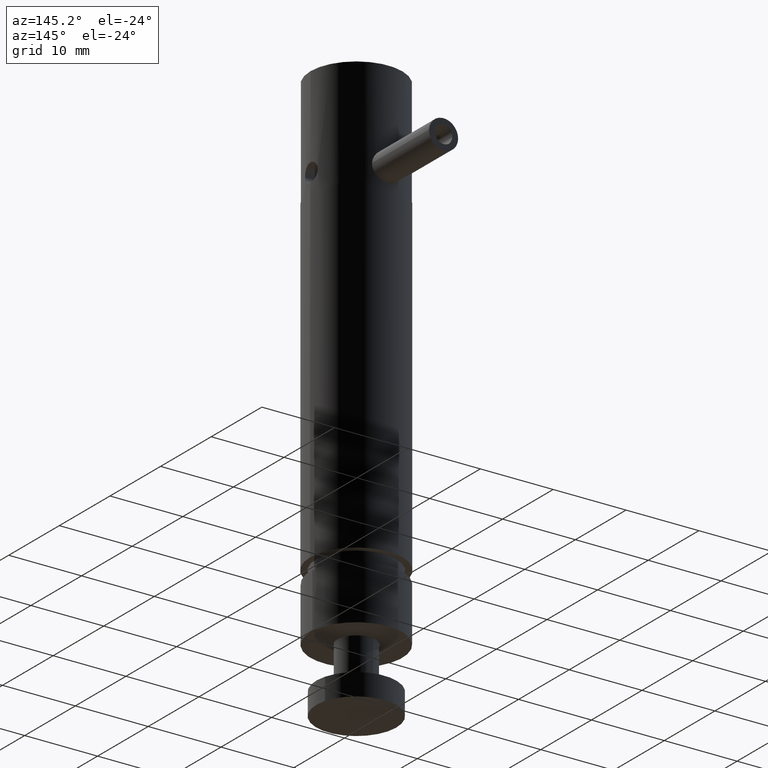
[diagram: clean part render]
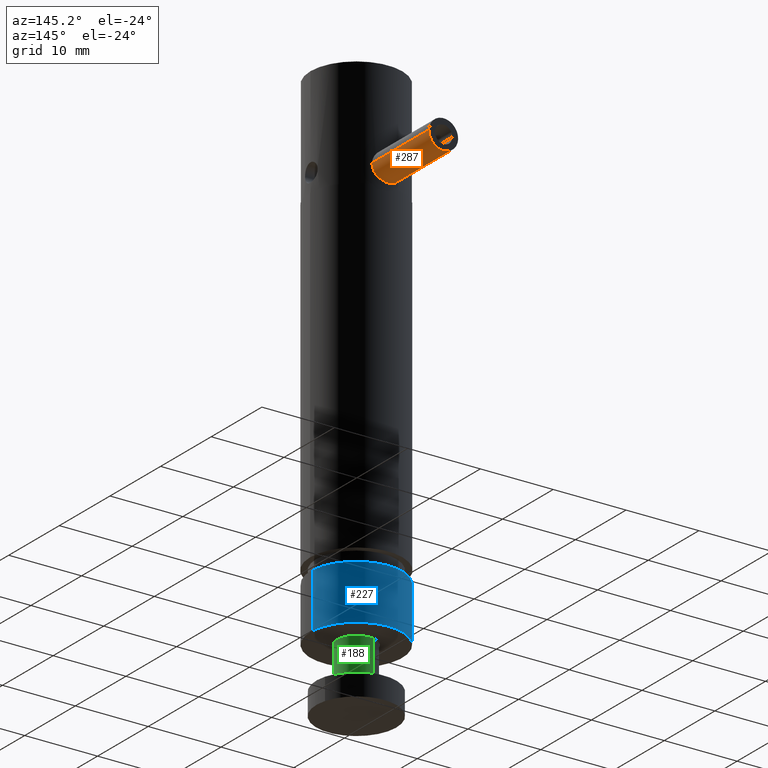
[diagram: same view with three faces highlighted in distinct colors, each labeled with its STEP entity id]
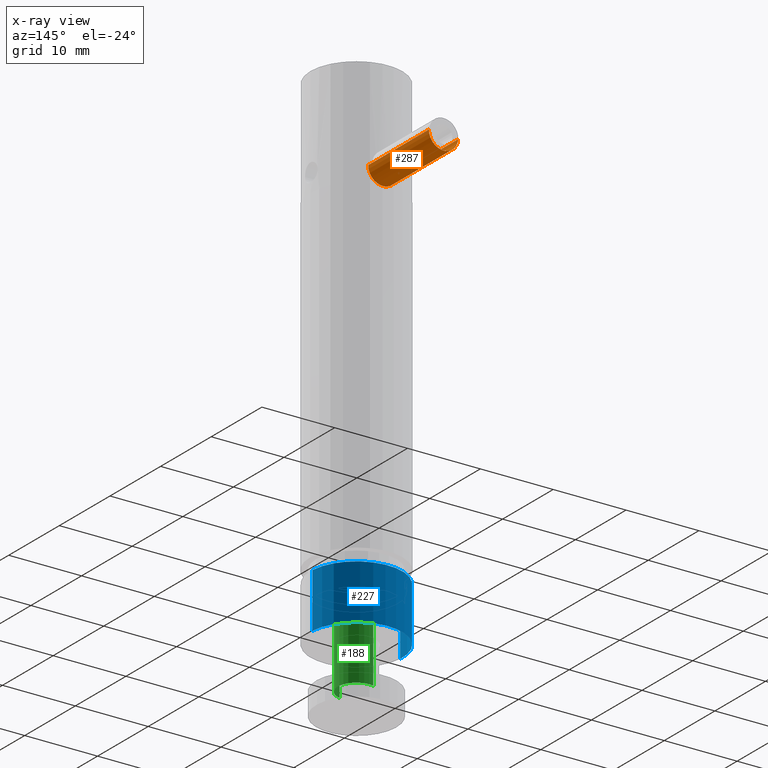
[diagram: x-ray of the same camera — body ghosted, the three highlighted faces saturated]
A machine part, auxiliary view with three faces highlighted in distinct colors.
The next image is the same camera in x-ray (body ghosted, the three faces saturated) — at least one of them is partly hidden behind the body in this view.
Their STEP definitions:

[orange] entity #287 — the highlighted cylindrical surface (edge-blend (fillet) strip) has radius 2 mm, axis along (0, -1, 0).
#281 = VERTEX_POINT ( 'NONE', #1646 ) ;
#284 = VERTEX_POINT ( 'NONE', #1640 ) ;
#286 = EDGE_CURVE ( 'NONE', #305, #284, #1638, .T. ) ;
#287 = ADVANCED_FACE ( 'NONE', ( #1634 ), #1670, .T. ) ;
#288 = EDGE_LOOP ( 'NONE', ( #289, #290, #292, #293 ) ) ;
#289 = ORIENTED_EDGE ( 'NONE', *, *, #308, .F. ) ;
#290 = ORIENTED_EDGE ( 'NONE', *, *, #291, .T. ) ;
#291 = EDGE_CURVE ( 'NONE', #306, #305, #1666, .T. ) ;
#292 = ORIENTED_EDGE ( 'NONE', *, *, #286, .T. ) ;
#293 = ORIENTED_EDGE ( 'NONE', *, *, #347, .F. ) ;
#305 = VERTEX_POINT ( 'NONE', #1730 ) ;
#306 = VERTEX_POINT ( 'NONE', #1729 ) ;
#308 = EDGE_CURVE ( 'NONE', #306, #281, #1728, .T. ) ;
#347 = EDGE_CURVE ( 'NONE', #281, #284, #1841, .T. ) ;
#1634 = FACE_OUTER_BOUND ( 'NONE', #288, .T. ) ;
#1635 = DIRECTION ( 'NONE',  ( 5.298209912513082200E-032, -1.000000000000000000, 1.224606353822371300E-016 ) ) ;
#1636 = VECTOR ( 'NONE', #1635, 39.37007874015748100 ) ;
#1637 = CARTESIAN_POINT ( 'NONE',  ( 0.1088473596767234200, 0.4205617955520675700, -0.7586861980781748300 ) ) ;
#1638 = LINE ( 'NONE', #1637, #1636 ) ;
#1640 = CARTESIAN_POINT ( 'NONE',  ( 0.1088473596767234600, -0.05187914932982037900, -0.7586861980781748300 ) ) ;
#1646 = CARTESIAN_POINT ( 'NONE',  ( -0.04847744956013849000, -0.05187914932982037900, -0.7656829114983621000 ) ) ;
#1663 = DIRECTION ( 'NONE',  ( 0.9990125386540726900, 0.0000000000000000000, 0.04442913021818899200 ) ) ;
#1664 = DIRECTION ( 'NONE',  ( 5.298209912513082200E-032, -1.000000000000000000, 1.224606353822371300E-016 ) ) ;
#1665 = AXIS2_PLACEMENT_3D ( 'NONE', #1671, #1664, #1663 ) ;
#1666 = CIRCLE ( 'NONE', #1665, 0.07874015748031498700 ) ;
#1667 = DIRECTION ( 'NONE',  ( 0.9990125386540726900, 0.0000000000000000000, 0.04442913021818899200 ) ) ;
#1668 = DIRECTION ( 'NONE',  ( 5.298209912513082200E-032, -1.000000000000000000, 1.224606353822371300E-016 ) ) ;
#1669 = AXIS2_PLACEMENT_3D ( 'NONE', #1672, #1668, #1667 ) ;
#1670 = CYLINDRICAL_SURFACE ( 'NONE', #1669, 0.07874015748031498700 ) ;
#1671 = CARTESIAN_POINT ( 'NONE',  ( 0.03018495505829247400, 0.4205617955520675700, -0.7621845547882684100 ) ) ;
#1672 = CARTESIAN_POINT ( 'NONE',  ( 0.03018495505829247400, 0.4205617955520675700, -0.7621845547882684100 ) ) ;
#1725 = DIRECTION ( 'NONE',  ( 5.298209912513082200E-032, -1.000000000000000000, 1.224606353822371300E-016 ) ) ;
#1726 = VECTOR ( 'NONE', #1725, 39.37007874015748100 ) ;
#1727 = CARTESIAN_POINT ( 'NONE',  ( -0.04847744956013847600, 0.4205617955520675700, -0.7656829114983621000 ) ) ;
#1728 = LINE ( 'NONE', #1727, #1726 ) ;
#1729 = CARTESIAN_POINT ( 'NONE',  ( -0.04847744956013852500, 0.4205617955520675700, -0.7656829114983621000 ) ) ;
#1730 = CARTESIAN_POINT ( 'NONE',  ( 0.1088473596767234200, 0.4205617955520675700, -0.7586861980781748300 ) ) ;
#1837 = DIRECTION ( 'NONE',  ( 0.9990125386540726900, 0.0000000000000000000, 0.04442913021818899200 ) ) ;
#1838 = DIRECTION ( 'NONE',  ( 5.298209912513082200E-032, -1.000000000000000000, 1.224606353822371300E-016 ) ) ;
#1839 = CARTESIAN_POINT ( 'NONE',  ( 0.03018495505829250900, -0.05187914932982037900, -0.7621845547882684100 ) ) ;
#1840 = AXIS2_PLACEMENT_3D ( 'NONE', #1839, #1838, #1837 ) ;
#1841 = CIRCLE ( 'NONE', #1840, 0.07874015748031498700 ) ;

[blue] entity #227 — the highlighted cylindrical surface (partial cylindrical patch) has radius 6.3 mm, axis along (0, -0, 1).
#182 = EDGE_LOOP ( 'NONE', ( #228, #232, #235, #238 ) ) ;
#227 = ADVANCED_FACE ( 'NONE', ( #1388 ), #1432, .T. ) ;
#228 = ORIENTED_EDGE ( 'NONE', *, *, #229, .T. ) ;
#229 = EDGE_CURVE ( 'NONE', #230, #231, #1427, .T. ) ;
#230 = VERTEX_POINT ( 'NONE', #1423 ) ;
#231 = VERTEX_POINT ( 'NONE', #1422 ) ;
#232 = ORIENTED_EDGE ( 'NONE', *, *, #233, .T. ) ;
#233 = EDGE_CURVE ( 'NONE', #231, #234, #1421, .T. ) ;
#234 = VERTEX_POINT ( 'NONE', #1417 ) ;
#235 = ORIENTED_EDGE ( 'NONE', *, *, #236, .F. ) ;
#236 = EDGE_CURVE ( 'NONE', #237, #234, #1416, .T. ) ;
#237 = VERTEX_POINT ( 'NONE', #1411 ) ;
#238 = ORIENTED_EDGE ( 'NONE', *, *, #239, .F. ) ;
#239 = EDGE_CURVE ( 'NONE', #230, #237, #1409, .T. ) ;
#1388 = FACE_OUTER_BOUND ( 'NONE', #182, .T. ) ;
#1406 = DIRECTION ( 'NONE',  ( 0.0000000000000000000, -4.930380657631323800E-032, 1.000000000000000000 ) ) ;
#1407 = VECTOR ( 'NONE', #1406, 39.37007874015748100 ) ;
#1408 = CARTESIAN_POINT ( 'NONE',  ( 0.2777223473760331900, -0.2421146956782646900, -2.994468019355212900 ) ) ;
#1409 = LINE ( 'NONE', #1408, #1407 ) ;
#1411 = CARTESIAN_POINT ( 'NONE',  ( 0.2777223473760331900, -0.2421146956782647400, -2.699192428804031400 ) ) ;
#1412 = DIRECTION ( 'NONE',  ( 0.9980078991857902500, 0.06308908909443360100, 0.0000000000000000000 ) ) ;
#1413 = DIRECTION ( 'NONE',  ( 0.0000000000000000000, -4.930380657631323800E-032, 1.000000000000000000 ) ) ;
#1414 = CARTESIAN_POINT ( 'NONE',  ( 0.03018495505829763000, -0.2577627768316085300, -2.699192428804031400 ) ) ;
#1415 = AXIS2_PLACEMENT_3D ( 'NONE', #1414, #1413, #1412 ) ;
#1416 = CIRCLE ( 'NONE', #1415, 0.2480314960629922700 ) ;
#1417 = CARTESIAN_POINT ( 'NONE',  ( -0.2173524372594378100, -0.2734108579849521800, -2.699192428804031400 ) ) ;
#1418 = DIRECTION ( 'NONE',  ( 0.0000000000000000000, -4.930380657631323800E-032, 1.000000000000000000 ) ) ;
#1419 = VECTOR ( 'NONE', #1418, 39.37007874015748100 ) ;
#1420 = CARTESIAN_POINT ( 'NONE',  ( -0.2173524372594379000, -0.2734108579849521800, -2.994468019355212900 ) ) ;
#1421 = LINE ( 'NONE', #1420, #1419 ) ;
#1422 = CARTESIAN_POINT ( 'NONE',  ( -0.2173524372594377900, -0.2734108579849521800, -2.994468019355212900 ) ) ;
#1423 = CARTESIAN_POINT ( 'NONE',  ( 0.2777223473760331900, -0.2421146956782646900, -2.994468019355212900 ) ) ;
#1424 = DIRECTION ( 'NONE',  ( 0.9980078991857902500, 0.06308908909443360100, 0.0000000000000000000 ) ) ;
#1425 = DIRECTION ( 'NONE',  ( 0.0000000000000000000, -4.930380657631323800E-032, 1.000000000000000000 ) ) ;
#1426 = AXIS2_PLACEMENT_3D ( 'NONE', #1433, #1425, #1424 ) ;
#1427 = CIRCLE ( 'NONE', #1426, 0.2480314960629922700 ) ;
#1428 = DIRECTION ( 'NONE',  ( 0.9980078991857902500, 0.06308908909443360100, 0.0000000000000000000 ) ) ;
#1429 = DIRECTION ( 'NONE',  ( 0.0000000000000000000, -4.930380657631323800E-032, 1.000000000000000000 ) ) ;
#1430 = CARTESIAN_POINT ( 'NONE',  ( 0.03018495505829766500, -0.2577627768316084800, -2.994468019355212900 ) ) ;
#1431 = AXIS2_PLACEMENT_3D ( 'NONE', #1430, #1429, #1428 ) ;
#1432 = CYLINDRICAL_SURFACE ( 'NONE', #1431, 0.2480314960629922700 ) ;
#1433 = CARTESIAN_POINT ( 'NONE',  ( 0.03018495505829766500, -0.2577627768316084800, -2.994468019355212900 ) ) ;

[green] entity #188 — the highlighted cylindrical surface (edge-blend (fillet) strip) has radius 2.55 mm, axis along (0, 0, -1).
#131 = VERTEX_POINT ( 'NONE', #1030 ) ;
#132 = VERTEX_POINT ( 'NONE', #1029 ) ;
#134 = EDGE_CURVE ( 'NONE', #132, #135, #1028, .T. ) ;
#135 = VERTEX_POINT ( 'NONE', #1024 ) ;
#167 = EDGE_CURVE ( 'NONE', #135, #185, #1220, .T. ) ;
#185 = VERTEX_POINT ( 'NONE', #1278 ) ;
#187 = EDGE_CURVE ( 'NONE', #131, #185, #1276, .T. ) ;
#188 = ADVANCED_FACE ( 'NONE', ( #1272 ), #1316, .T. ) ;
#189 = EDGE_LOOP ( 'NONE', ( #190, #191, #193, #194 ) ) ;
#190 = ORIENTED_EDGE ( 'NONE', *, *, #134, .F. ) ;
#191 = ORIENTED_EDGE ( 'NONE', *, *, #192, .T. ) ;
#192 = EDGE_CURVE ( 'NONE', #132, #131, #1312, .T. ) ;
#193 = ORIENTED_EDGE ( 'NONE', *, *, #187, .T. ) ;
#194 = ORIENTED_EDGE ( 'NONE', *, *, #167, .F. ) ;
#1024 = CARTESIAN_POINT ( 'NONE',  ( 0.006807832206671142600, -0.1601287392987363900, -3.222814476048128500 ) ) ;
#1025 = DIRECTION ( 'NONE',  ( 3.292721997838465600E-016, 3.469446951953477400E-017, -1.000000000000000000 ) ) ;
#1026 = VECTOR ( 'NONE', #1025, 39.37007874015748100 ) ;
#1027 = CARTESIAN_POINT ( 'NONE',  ( 0.006807832206671100100, -0.1601287392987365000, -2.907853846126866100 ) ) ;
#1028 = LINE ( 'NONE', #1027, #1026 ) ;
#1029 = CARTESIAN_POINT ( 'NONE',  ( 0.006807832206671147000, -0.1601287392987364200, -2.907853846126866100 ) ) ;
#1030 = CARTESIAN_POINT ( 'NONE',  ( 0.05356207790992408000, -0.3553968143644806200, -2.907853846126866100 ) ) ;
#1216 = DIRECTION ( 'NONE',  ( 0.2328544786005148900, -0.9725115895431181200, 0.0000000000000000000 ) ) ;
#1217 = DIRECTION ( 'NONE',  ( 3.292721997838465600E-016, 3.469446951953477400E-017, -1.000000000000000000 ) ) ;
#1218 = CARTESIAN_POINT ( 'NONE',  ( 0.03018495505829766500, -0.2577627768316084800, -3.222814476048128500 ) ) ;
#1219 = AXIS2_PLACEMENT_3D ( 'NONE', #1218, #1217, #1216 ) ;
#1220 = CIRCLE ( 'NONE', #1219, 0.1003937007874015200 ) ;
#1272 = FACE_OUTER_BOUND ( 'NONE', #189, .T. ) ;
#1273 = DIRECTION ( 'NONE',  ( 3.292721997838465600E-016, 3.469446951953477400E-017, -1.000000000000000000 ) ) ;
#1274 = VECTOR ( 'NONE', #1273, 39.37007874015748100 ) ;
#1275 = CARTESIAN_POINT ( 'NONE',  ( 0.05356207790992408000, -0.3553968143644806200, -2.907853846126866100 ) ) ;
#1276 = LINE ( 'NONE', #1275, #1274 ) ;
#1278 = CARTESIAN_POINT ( 'NONE',  ( 0.05356207790992415000, -0.3553968143644805100, -3.222814476048128500 ) ) ;
#1309 = DIRECTION ( 'NONE',  ( 0.2328544786005148100, -0.9725115895431181200, 0.0000000000000000000 ) ) ;
#1310 = DIRECTION ( 'NONE',  ( 3.292721997838465600E-016, 3.469446951953477400E-017, -1.000000000000000000 ) ) ;
#1311 = AXIS2_PLACEMENT_3D ( 'NONE', #1317, #1310, #1309 ) ;
#1312 = CIRCLE ( 'NONE', #1311, 0.1003937007874015500 ) ;
#1313 = DIRECTION ( 'NONE',  ( 0.2328544786005148100, -0.9725115895431181200, 0.0000000000000000000 ) ) ;
#1314 = DIRECTION ( 'NONE',  ( 3.292721997838465600E-016, 3.469446951953477400E-017, -1.000000000000000000 ) ) ;
#1315 = AXIS2_PLACEMENT_3D ( 'NONE', #1318, #1314, #1313 ) ;
#1316 = CYLINDRICAL_SURFACE ( 'NONE', #1315, 0.1003937007874015500 ) ;
#1317 = CARTESIAN_POINT ( 'NONE',  ( 0.03018495505829759500, -0.2577627768316085300, -2.907853846126866100 ) ) ;
#1318 = CARTESIAN_POINT ( 'NONE',  ( 0.03018495505829759500, -0.2577627768316085300, -2.907853846126866100 ) ) ;